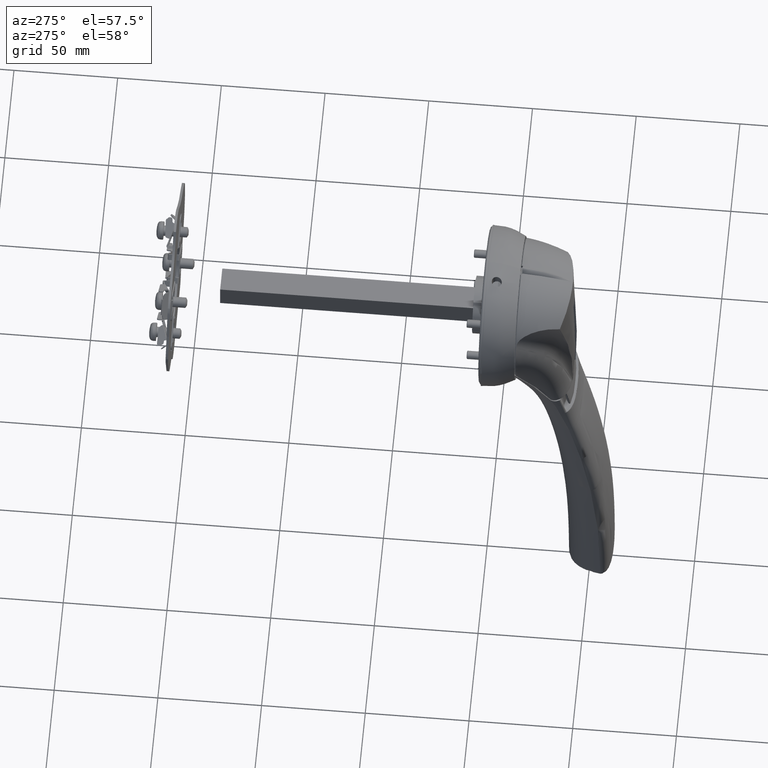
[diagram: clean part render]
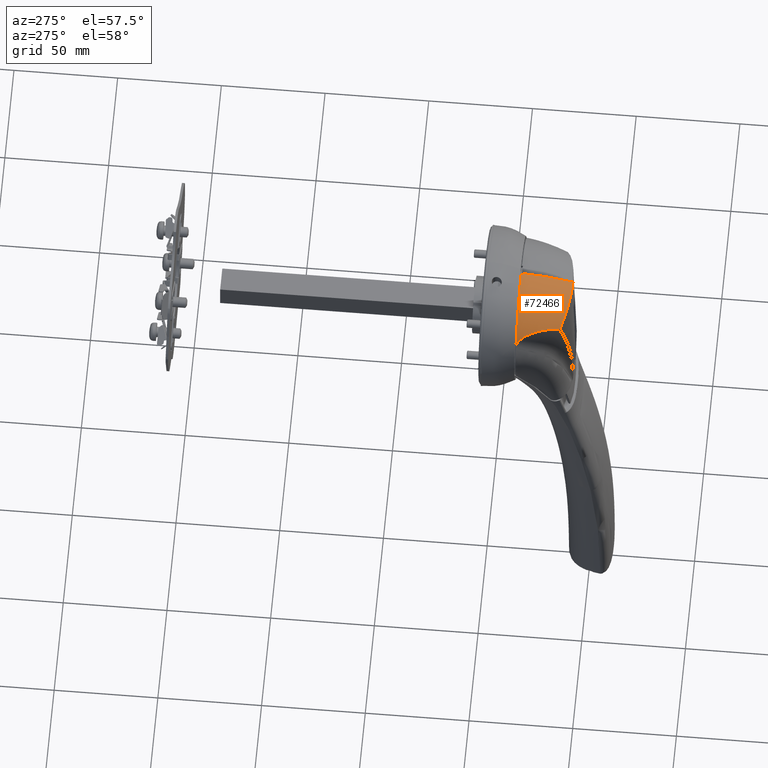
[diagram: same view with one face highlighted and labeled with its STEP entity id]
A machine part, auxiliary view. The second image highlights one B-rep face of the part: STEP entity #72466.
In plain terms, the highlighted face is a freeform B-spline surface patch.
Its self-contained STEP definition (entity closure, byte-faithful):
#64176=CARTESIAN_POINT('',(-2.204747517631E1,-3.696457313312E1,
1.816424930670E1));
#64177=CARTESIAN_POINT('',(-2.231484695051E1,-3.595768819146E1,
1.850492111998E1));
#64178=CARTESIAN_POINT('',(-2.281983744961E1,-3.399953926490E1,
1.909606147936E1));
#64179=CARTESIAN_POINT('',(-2.361086131144E1,-3.127089312547E1,
1.962378905099E1));
#64180=CARTESIAN_POINT('',(-2.441000711580E1,-2.875612849212E1,
1.981005188103E1));
#64181=CARTESIAN_POINT('',(-2.520952481400E1,-2.645448752561E1,
1.973161239998E1));
#64182=CARTESIAN_POINT('',(-2.597510465815E1,-2.443237571592E1,
1.945025134766E1));
#64183=CARTESIAN_POINT('',(-2.671334731381E1,-2.265585213021E1,
1.902676775942E1));
#64184=CARTESIAN_POINT('',(-2.741235129018E1,-2.113210355846E1,
1.848650624893E1));
#64185=CARTESIAN_POINT('',(-2.807235119842E1,-1.984584453122E1,
1.785156398280E1));
#64186=CARTESIAN_POINT('',(-2.870106803516E1,-1.877573166944E1,
1.713893052024E1));
#64187=CARTESIAN_POINT('',(-2.930666968200E1,-1.790779230456E1,
1.635231395327E1));
#64188=CARTESIAN_POINT('',(-2.988936811082E1,-1.725101445490E1,
1.547446101768E1));
#64189=CARTESIAN_POINT('',(-3.043799246019E1,-1.682911617169E1,
1.449939665156E1));
#64190=CARTESIAN_POINT('',(-3.094416485698E1,-1.662805571172E1,
1.345368303337E1));
#64191=CARTESIAN_POINT('',(-3.126899732613E1,-1.660221988197E1,
1.268572670431E1));
#64192=CARTESIAN_POINT('',(-3.142435602910E1,-1.659995744259E1,
1.229443987732E1));
#64224=CARTESIAN_POINT('',(-2.170459178877E1,-3.713039925126E1,
1.846476580945E1));
#64225=CARTESIAN_POINT('',(-2.108727599889E1,-3.742432712661E1,
1.899881161159E1));
#64226=CARTESIAN_POINT('',(-1.968747999896E1,-3.803717438052E1,
2.012469998156E1));
#64227=CARTESIAN_POINT('',(-1.736788963325E1,-3.887883265864E1,
2.170350521777E1));
#64228=CARTESIAN_POINT('',(-1.518784259367E1,-3.951599098557E1,
2.291938044700E1));
#64229=CARTESIAN_POINT('',(-1.336962808800E1,-3.996124103601E1,
2.377742839469E1));
#64230=CARTESIAN_POINT('',(-1.197169129180E1,-4.026218669508E1,
2.436090233913E1));
#64231=CARTESIAN_POINT('',(-1.054264541077E1,-4.052960587051E1,
2.488204156294E1));
#64232=CARTESIAN_POINT('',(-8.600068185443E0,-4.084045572601E1,
2.549057076617E1));
#64233=CARTESIAN_POINT('',(-6.608842129005E0,-4.108171110387E1,
2.596575503660E1));
#64234=CARTESIAN_POINT('',(-4.584108197680E0,-4.125146796886E1,
2.630114006257E1));
#64235=CARTESIAN_POINT('',(-3.053045086271E0,-4.134261530803E1,
2.648162301726E1));
#64236=CARTESIAN_POINT('',(-1.511164663264E0,-4.139753697549E1,
2.659028519606E1));
#64237=CARTESIAN_POINT('',(-4.812270226593E-1,-4.140968176292E1,
2.661479922460E1));
#64238=CARTESIAN_POINT('',(3.518499498542E-2,-4.140963202580E1,
2.661470162415E1));
#64240=CARTESIAN_POINT('',(-2.204747517631E1,-3.696457313312E1,
1.816424930670E1));
#64241=CARTESIAN_POINT('',(-2.193398485416E1,-3.702031340220E1,
1.826509797982E1));
#64242=CARTESIAN_POINT('',(-2.181967296986E1,-3.707560476107E1,
1.836520808036E1));
#64243=CARTESIAN_POINT('',(-2.170459178877E1,-3.713039925126E1,
1.846476580945E1));
#64272=CARTESIAN_POINT('',(3.518499498542E-2,-4.140963202580E1,
2.661470162415E1));
#64761=CARTESIAN_POINT('',(3.517962595722E-2,-4.063912411470E1,
2.697389629480E1));
#64762=CARTESIAN_POINT('',(3.519808477428E-2,-4.089603482010E1,
2.685446086658E1));
#64763=CARTESIAN_POINT('',(3.516649738460E-2,-4.115285990974E1,
2.673443499451E1));
#64764=CARTESIAN_POINT('',(3.518499498542E-2,-4.140963202580E1,
2.661470162415E1));
#64793=CARTESIAN_POINT('',(3.517962595722E-2,-4.063912411470E1,
2.697389629480E1));
#64848=CARTESIAN_POINT('',(-1.801437705354E0,-1.710000313321E1,
3.365211435462E1));
#64849=CARTESIAN_POINT('',(-1.787960942106E0,-1.779150045409E1,
3.355528606998E1));
#64850=CARTESIAN_POINT('',(-1.755127102823E0,-1.911276371501E1,
3.336639220401E1));
#64851=CARTESIAN_POINT('',(-1.696308119173E0,-2.090145849632E1,
3.309264032579E1));
#64852=CARTESIAN_POINT('',(-1.632536236834E0,-2.252181029549E1,
3.282291976142E1));
#64853=CARTESIAN_POINT('',(-1.567090236964E0,-2.399162416666E1,
3.255498742331E1));
#64854=CARTESIAN_POINT('',(-1.502010877819E0,-2.532898815086E1,
3.228798468657E1));
#64855=CARTESIAN_POINT('',(-1.438016874992E0,-2.656001078197E1,
3.201951734274E1));
#64856=CARTESIAN_POINT('',(-1.376509195309E0,-2.768708802715E1,
3.175201984452E1));
#64857=CARTESIAN_POINT('',(-1.318189549550E0,-2.871930802482E1,
3.148688247284E1));
#64858=CARTESIAN_POINT('',(-1.263616739405E0,-2.966442442708E1,
3.122542227830E1));
#64859=CARTESIAN_POINT('',(-1.212648212130E0,-3.053073707106E1,
3.096950485459E1));
#64860=CARTESIAN_POINT('',(-1.164617508212E0,-3.132657826128E1,
3.072118262977E1));
#64861=CARTESIAN_POINT('',(-1.119052267583E0,-3.205993860466E1,
3.048132249525E1));
#64862=CARTESIAN_POINT('',(-1.075463853600E0,-3.273890395556E1,
3.024999958858E1));
#64863=CARTESIAN_POINT('',(-1.033504841954E0,-3.337035566631E1,
3.002690279121E1));
#64864=CARTESIAN_POINT('',(-9.929545448440E-1,-3.395916400583E1,
2.981194772480E1));
#64865=CARTESIAN_POINT('',(-9.537733333431E-1,-3.450755622982E1,
2.960571310027E1));
#64866=CARTESIAN_POINT('',(-9.159587692756E-1,-3.501735742123E1,
2.940874680575E1));
#64867=CARTESIAN_POINT('',(-8.795394208841E-1,-3.549044119209E1,
2.922137695505E1));
#64868=CARTESIAN_POINT('',(-8.443137226713E-1,-3.592860740607E1,
2.904417620296E1));
#64869=CARTESIAN_POINT('',(-8.101163423837E-1,-3.633366199495E1,
2.887748430453E1));
#64870=CARTESIAN_POINT('',(-7.768702172210E-1,-3.670725257320E1,
2.872145640043E1));
#64871=CARTESIAN_POINT('',(-7.445069343114E-1,-3.705157288411E1,
2.857581043007E1));
#64872=CARTESIAN_POINT('',(-7.130965907576E-1,-3.736781410279E1,
2.844052504290E1));
#64873=CARTESIAN_POINT('',(-6.826751951553E-1,-3.765777317786E1,
2.831521915569E1));
#64874=CARTESIAN_POINT('',(-6.533088514030E-1,-3.792304458282E1,
2.819951002317E1));
#64875=CARTESIAN_POINT('',(-6.250737852327E-1,-3.816524325784E1,
2.809293397981E1));
#64876=CARTESIAN_POINT('',(-5.978626498563E-1,-3.838600396823E1,
2.799515892720E1));
#64877=CARTESIAN_POINT('',(-5.716141576770E-1,-3.858692809891E1,
2.790574003831E1));
#64878=CARTESIAN_POINT('',(-5.463064480902E-1,-3.876958277853E1,
2.782414835455E1));
#64879=CARTESIAN_POINT('',(-5.219447456585E-1,-3.893552638520E1,
2.774978166911E1));
#64880=CARTESIAN_POINT('',(-4.985375766443E-1,-3.908629943197E1,
2.768200292038E1));
#64881=CARTESIAN_POINT('',(-4.760790290046E-1,-3.922342349215E1,
2.762016186114E1));
#64882=CARTESIAN_POINT('',(-4.545426926326E-1,-3.934841058136E1,
2.756359595922E1));
#64883=CARTESIAN_POINT('',(-4.338644386305E-1,-3.946275821018E1,
2.751164939726E1));
#64884=CARTESIAN_POINT('',(-4.138103619870E-1,-3.956786373786E1,
2.746382325800E1));
#64885=CARTESIAN_POINT('',(-3.941593846983E-1,-3.966516788863E1,
2.741952861810E1));
#64886=CARTESIAN_POINT('',(-3.746701318806E-1,-3.975610022954E1,
2.737815118969E1));
#64887=CARTESIAN_POINT('',(-3.550847353892E-1,-3.984224859589E1,
2.733894431022E1));
#64888=CARTESIAN_POINT('',(-3.350965028706E-1,-3.992523636423E1,
2.730112157841E1));
#64889=CARTESIAN_POINT('',(-3.143449608506E-1,-4.000653159409E1,
2.726397290708E1));
#64890=CARTESIAN_POINT('',(-2.923779085543E-1,-4.008794637842E1,
2.722655233921E1));
#64891=CARTESIAN_POINT('',(-2.685878958499E-1,-4.016960107128E1,
2.718899750848E1));
#64892=CARTESIAN_POINT('',(-2.406910743623E-1,-4.025336049901E1,
2.715097784806E1));
#64893=CARTESIAN_POINT('',(-2.106857838944E-1,-4.033278528172E1,
2.711505324737E1));
#64894=CARTESIAN_POINT('',(-1.768738443180E-1,-4.042130586255E1,
2.707317421579E1));
#64895=CARTESIAN_POINT('',(-1.387104119373E-1,-4.050798493122E1,
2.703157963831E1));
#64896=CARTESIAN_POINT('',(-9.512781751889E-2,-4.057753889633E1,
2.699942384931E1));
#64897=CARTESIAN_POINT('',(-3.855959526427E-2,-4.062901490482E1,
2.697725779181E1));
#64898=CARTESIAN_POINT('',(9.238280943395E-3,-4.064026407871E1,
2.697337068388E1));
#64899=CARTESIAN_POINT('',(3.517962595722E-2,-4.063912411470E1,
2.697389629480E1));
#64931=CARTESIAN_POINT('',(-1.801437705354E0,-1.710000313321E1,
3.365211435462E1));
#64937=CARTESIAN_POINT('',(-2.468281450673E0,-1.709999998657E1,
3.360917599139E1));
#64938=CARTESIAN_POINT('',(-2.246858380135E0,-1.709999998657E1,
3.362563646692E1));
#64939=CARTESIAN_POINT('',(-2.023142495613E0,-1.710000313321E1,
3.364003668427E1));
#64940=CARTESIAN_POINT('',(-1.801437705354E0,-1.710000313321E1,
3.365211435462E1));
#65738=CARTESIAN_POINT('',(-2.470396414698E0,-1.659999562333E1,
3.367959265492E1));
#65739=CARTESIAN_POINT('',(-2.470396414698E0,-1.676666671448E1,
3.365608285990E1));
#65740=CARTESIAN_POINT('',(-2.468281450673E0,-1.693333515402E1,
3.363273011366E1));
#65741=CARTESIAN_POINT('',(-2.468281450673E0,-1.709999998657E1,
3.360917599139E1));
#65743=CARTESIAN_POINT('',(-3.099096956386E1,-1.659995044892E1,
1.334774699088E1));
#65744=CARTESIAN_POINT('',(-3.080719193130E1,-1.659995044892E1,
1.377547889033E1));
#65745=CARTESIAN_POINT('',(-3.026649986380E1,-1.660004416227E1,
1.496714042633E1));
#65746=CARTESIAN_POINT('',(-2.926180044740E1,-1.659998651444E1,
1.687131760696E1));
#65747=CARTESIAN_POINT('',(-2.791792652244E1,-1.660000467048E1,
1.901535470614E1));
#65748=CARTESIAN_POINT('',(-2.641712190193E1,-1.659999980559E1,
2.105272932426E1));
#65749=CARTESIAN_POINT('',(-2.476820123254E1,-1.660000110911E1,
2.297216301345E1));
#65750=CARTESIAN_POINT('',(-2.298029594569E1,-1.660000075991E1,
2.476286315145E1));
#65751=CARTESIAN_POINT('',(-2.106345349151E1,-1.660000085320E1,
2.641480533994E1));
#65752=CARTESIAN_POINT('',(-1.902840798324E1,-1.660000082924E1,
2.791873016953E1));
#65753=CARTESIAN_POINT('',(-1.688656223099E1,-1.660000083178E1,
2.926621117994E1));
#65754=CARTESIAN_POINT('',(-1.464992782749E1,-1.660000084558E1,
3.044969679423E1));
#65755=CARTESIAN_POINT('',(-1.233100003956E1,-1.660000078786E1,
3.146255811305E1));
#65756=CARTESIAN_POINT('',(-9.942914733710E0,-1.660000100494E1,
3.229910899034E1));
#65757=CARTESIAN_POINT('',(-7.498525039166E0,-1.660000019435E1,
3.295470115516E1));
#65758=CARTESIAN_POINT('',(-5.005897562396E0,-1.660000322887E1,
3.342695437942E1));
#65759=CARTESIAN_POINT('',(-3.318687688405E0,-1.659999562333E1,
3.361654495457E1));
#65760=CARTESIAN_POINT('',(-2.470396414698E0,-1.659999562333E1,
3.367959265492E1));
#65762=CARTESIAN_POINT('',(-3.142660497812E1,-1.659979410003E1,
1.228888543513E1));
#65763=CARTESIAN_POINT('',(-3.142501573044E1,-1.659979410003E1,
1.229289694828E1));
#65764=CARTESIAN_POINT('',(-3.128438927609E1,-1.659979410003E1,
1.264770858774E1));
#65765=CARTESIAN_POINT('',(-3.113904279957E1,-1.659979410003E1,
1.300067421573E1));
#65766=CARTESIAN_POINT('',(-3.099008437968E1,-1.659979410003E1,
1.334736664221E1));
#65994=VERTEX_POINT('',#64793);
#65995=VERTEX_POINT('',#64931);
#66004=CARTESIAN_POINT('',(-2.470396414698E0,-1.659999562333E1,
3.367959265492E1));
#66006=VERTEX_POINT('',#66004);
#66008=VERTEX_POINT('',#65741);
#66019=VERTEX_POINT('',#64272);
#66020=VERTEX_POINT('',#64224);
#66021=VERTEX_POINT('',#64240);
#66022=VERTEX_POINT('',#65743);
#66023=VERTEX_POINT('',#65762);
#72005=CARTESIAN_POINT('',(-3.160665845143E1,-1.634108782509E1,
1.192903671927E1));
#72006=CARTESIAN_POINT('',(-3.159536817396E1,-1.642739188344E1,
1.192473820855E1));
#72007=CARTESIAN_POINT('',(-3.151401643160E1,-1.704925796767E1,
1.189376541892E1));
#72008=CARTESIAN_POINT('',(-3.136258606061E1,-1.820668453924E1,
1.183611194236E1));
#72009=CARTESIAN_POINT('',(-3.114431765861E1,-1.981215166701E1,
1.175307097420E1));
#72010=CARTESIAN_POINT('',(-3.091064243644E1,-2.141516216114E1,
1.166427793210E1));
#72011=CARTESIAN_POINT('',(-3.065498135962E1,-2.301436660946E1,
1.156727656015E1));
#72012=CARTESIAN_POINT('',(-3.037160117250E1,-2.460826772488E1,
1.145992637057E1));
#72013=CARTESIAN_POINT('',(-3.005568535276E1,-2.619521807810E1,
1.134042913425E1));
#72014=CARTESIAN_POINT('',(-2.970341246079E1,-2.777346287609E1,
1.120735813218E1));
#72015=CARTESIAN_POINT('',(-2.931204352403E1,-2.934122178773E1,
1.105969078003E1));
#72016=CARTESIAN_POINT('',(-2.888001713575E1,-3.089681537467E1,
1.089684413293E1));
#72017=CARTESIAN_POINT('',(-2.840704596512E1,-3.243882670929E1,
1.071871091708E1));
#72018=CARTESIAN_POINT('',(-2.789420745771E1,-3.396629488097E1,
1.052569339241E1));
#72019=CARTESIAN_POINT('',(-2.734402534661E1,-3.547892544618E1,
1.031873378446E1));
#72020=CARTESIAN_POINT('',(-2.676054210544E1,-3.697730157540E1,
1.009934133439E1));
#72021=CARTESIAN_POINT('',(-2.614938943439E1,-3.846307819202E1,
9.869618614679E0));
#72022=CARTESIAN_POINT('',(-2.551787885579E1,-3.993913180646E1,
9.632295352586E0));
#72023=CARTESIAN_POINT('',(-2.505509686348E1,-4.099786817915E1,
9.458400632559E0));
#72024=CARTESIAN_POINT('',(-2.480653683149E1,-4.156641619063E1,
9.365001928892E0));
#72025=CARTESIAN_POINT('',(-2.477226412741E1,-4.164481138141E1,
9.352123646306E0));
#72026=CARTESIAN_POINT('',(-3.155663942014E1,-1.634108782509E1,
1.205752953101E1));
#72027=CARTESIAN_POINT('',(-3.154534699692E1,-1.642739188344E1,
1.205319126119E1));
#72028=CARTESIAN_POINT('',(-3.146397979116E1,-1.704925796767E1,
1.202193198927E1));
#72029=CARTESIAN_POINT('',(-3.131252069699E1,-1.820668453924E1,
1.196374522816E1));
#72030=CARTESIAN_POINT('',(-3.109423959242E1,-1.981215166701E1,
1.187992684689E1));
#72031=CARTESIAN_POINT('',(-3.086060360253E1,-2.141516216114E1,
1.179028541144E1));
#72032=CARTESIAN_POINT('',(-3.060505587007E1,-2.301436660946E1,
1.169233435588E1));
#72033=CARTESIAN_POINT('',(-3.032188246566E1,-2.460826772488E1,
1.158390677893E1));
#72034=CARTESIAN_POINT('',(-3.000628310295E1,-2.619521807810E1,
1.146318226145E1));
#72035=CARTESIAN_POINT('',(-2.965444922404E1,-2.777346287609E1,
1.132871647880E1));
#72036=CARTESIAN_POINT('',(-2.926365108917E1,-2.934122178773E1,
1.117947422803E1));
#72037=CARTESIAN_POINT('',(-2.883233255495E1,-3.089681537467E1,
1.101486537077E1));
#72038=CARTESIAN_POINT('',(-2.836020725910E1,-3.243882670929E1,
1.083478130945E1));
#72039=CARTESIAN_POINT('',(-2.784834901525E1,-3.396629488097E1,
1.063962926788E1));
#72040=CARTESIAN_POINT('',(-2.729927304924E1,-3.547892544618E1,
1.043036309861E1));
#72041=CARTESIAN_POINT('',(-2.671700820791E1,-3.697730157540E1,
1.020851066673E1));
#72042=CARTESIAN_POINT('',(-2.610716720755E1,-3.846307819202E1,
9.976200490321E0));
#72043=CARTESIAN_POINT('',(-2.547703692410E1,-3.993913180646E1,
9.736195981321E0));
#72044=CARTESIAN_POINT('',(-2.501527604463E1,-4.099786817915E1,
9.560333467630E0));
#72045=CARTESIAN_POINT('',(-2.476726449262E1,-4.156641619063E1,
9.465877850335E0));
#72046=CARTESIAN_POINT('',(-2.473306741532E1,-4.164481138141E1,
9.452853835315E0));
#72047=CARTESIAN_POINT('',(-3.119958572046E1,-1.634108782509E1,
1.297172180086E1));
#72048=CARTESIAN_POINT('',(-3.118827875238E1,-1.642739188344E1,
1.296710047364E1));
#72049=CARTESIAN_POINT('',(-3.110680672820E1,-1.704925796767E1,
1.293380164530E1));
#72050=CARTESIAN_POINT('',(-3.095515295383E1,-1.820668453924E1,
1.287181826642E1));
#72051=CARTESIAN_POINT('',(-3.073679499257E1,-1.981215166701E1,
1.278246554173E1));
#72052=CARTESIAN_POINT('',(-3.050345181032E1,-2.141516216114E1,
1.268678500826E1));
#72053=CARTESIAN_POINT('',(-3.024872440423E1,-2.301436660946E1,
1.258207455929E1));
#72054=CARTESIAN_POINT('',(-2.996703640608E1,-2.460826772488E1,
1.246597946200E1));
#72055=CARTESIAN_POINT('',(-2.965370309501E1,-2.619521807810E1,
1.233652149946E1));
#72056=CARTESIAN_POINT('',(-2.930500760301E1,-2.777346287609E1,
1.219213114993E1));
#72057=CARTESIAN_POINT('',(-2.891828590801E1,-2.934122178773E1,
1.203168347691E1));
#72058=CARTESIAN_POINT('',(-2.849201933030E1,-3.089681537467E1,
1.185453718757E1));
#72059=CARTESIAN_POINT('',(-2.802592840171E1,-3.243882670929E1,
1.166057427088E1));
#72060=CARTESIAN_POINT('',(-2.752106108411E1,-3.396629488097E1,
1.145023724967E1));
#72061=CARTESIAN_POINT('',(-2.697987205001E1,-3.547892544618E1,
1.122456265843E1));
#72062=CARTESIAN_POINT('',(-2.640629315298E1,-3.697730157540E1,
1.098521080083E1));
#72063=CARTESIAN_POINT('',(-2.580580198480E1,-3.846307819202E1,
1.073449469937E1));
#72064=CARTESIAN_POINT('',(-2.518550999202E1,-3.993913180646E1,
1.047541730436E1));
#72065=CARTESIAN_POINT('',(-2.473102700115E1,-4.099786817915E1,
1.028555709432E1));
#72066=CARTESIAN_POINT('',(-2.448692468908E1,-4.156641619063E1,
1.018358323181E1));
#72067=CARTESIAN_POINT('',(-2.445326663465E1,-4.164481138141E1,
1.016952256426E1));
#72068=CARTESIAN_POINT('',(-3.047757018918E1,-1.634108782509E1,
1.464901613655E1));
#72069=CARTESIAN_POINT('',(-3.046627740425E1,-1.642739188344E1,
1.464386517188E1));
#72070=CARTESIAN_POINT('',(-3.038490754893E1,-1.704925796767E1,
1.460675006513E1));
#72071=CARTESIAN_POINT('',(-3.023344469490E1,-1.820668453924E1,
1.453766275105E1));
#72072=CARTESIAN_POINT('',(-3.001571136848E1,-1.981215166701E1,
1.443797163873E1));
#72073=CARTESIAN_POINT('',(-2.978368021489E1,-2.141516216114E1,
1.433104084055E1));
#72074=CARTESIAN_POINT('',(-2.953124576284E1,-2.301436660946E1,
1.421377885920E1));
#72075=CARTESIAN_POINT('',(-2.925308744018E1,-2.460826772488E1,
1.408349163002E1));
#72076=CARTESIAN_POINT('',(-2.894473542101E1,-2.619521807810E1,
1.393791586259E1));
#72077=CARTESIAN_POINT('',(-2.860264333544E1,-2.777346287609E1,
1.377525585721E1));
#72078=CARTESIAN_POINT('',(-2.822426936396E1,-2.934122178773E1,
1.359422456692E1));
#72079=CARTESIAN_POINT('',(-2.780816449090E1,-3.089681537467E1,
1.339408828458E1));
#72080=CARTESIAN_POINT('',(-2.735406206770E1,-3.243882670929E1,
1.317471199302E1));
#72081=CARTESIAN_POINT('',(-2.686296198469E1,-3.396629488097E1,
1.293660198539E1));
#72082=CARTESIAN_POINT('',(-2.633720631501E1,-3.547892544618E1,
1.268094416734E1));
#72083=CARTESIAN_POINT('',(-2.578054655238E1,-3.697730157540E1,
1.240963810273E1));
#72084=CARTESIAN_POINT('',(-2.519820902352E1,-3.846307819202E1,
1.212533013519E1));
#72085=CARTESIAN_POINT('',(-2.459697896261E1,-3.993913180646E1,
1.183145595905E1));
#72086=CARTESIAN_POINT('',(-2.415658188565E1,-4.099786817915E1,
1.161606293643E1));
#72087=CARTESIAN_POINT('',(-2.392004560778E1,-4.156641619063E1,
1.150037526979E1));
#72088=CARTESIAN_POINT('',(-2.388743079140E1,-4.164481138141E1,
1.148442367547E1));
#72089=CARTESIAN_POINT('',(-2.929497428202E1,-1.634108782509E1,
1.688886657307E1));
#72090=CARTESIAN_POINT('',(-2.928382995369E1,-1.642739188344E1,
1.688297982866E1));
#72091=CARTESIAN_POINT('',(-2.920352976696E1,-1.704925796767E1,
1.684056309110E1));
#72092=CARTESIAN_POINT('',(-2.905405885543E1,-1.820668453924E1,
1.676160698233E1));
#72093=CARTESIAN_POINT('',(-2.883958930605E1,-1.981215166701E1,
1.664760000383E1));
#72094=CARTESIAN_POINT('',(-2.861177511798E1,-2.141516216114E1,
1.652517493428E1));
#72095=CARTESIAN_POINT('',(-2.836491785133E1,-2.301436660946E1,
1.639073707269E1));
#72096=CARTESIAN_POINT('',(-2.809405163880E1,-2.460826772488E1,
1.624115384094E1));
#72097=CARTESIAN_POINT('',(-2.779500464285E1,-2.619521807810E1,
1.607379355233E1));
#72098=CARTESIAN_POINT('',(-2.746446691826E1,-2.777346287609E1,
1.588656822075E1));
#72099=CARTESIAN_POINT('',(-2.710006610015E1,-2.934122178773E1,
1.567798130635E1));
#72100=CARTESIAN_POINT('',(-2.670044977391E1,-3.089681537467E1,
1.544717967630E1));
#72101=CARTESIAN_POINT('',(-2.626536906753E1,-3.243882670929E1,
1.519400633667E1));
#72102=CARTESIAN_POINT('',(-2.579575721200E1,-3.396629488097E1,
1.491904999006E1));
#72103=CARTESIAN_POINT('',(-2.529380014224E1,-3.547892544618E1,
1.462368957221E1));
#72104=CARTESIAN_POINT('',(-2.476299925239E1,-3.697730157540E1,
1.431013383942E1));
#72105=CARTESIAN_POINT('',(-2.420823244740E1,-3.846307819202E1,
1.398145988120E1));
#72106=CARTESIAN_POINT('',(-2.363583261250E1,-3.993913180646E1,
1.364166262060E1));
#72107=CARTESIAN_POINT('',(-2.321669428596E1,-4.099786817915E1,
1.339258582352E1));
#72108=CARTESIAN_POINT('',(-2.299157663127E1,-4.156641619063E1,
1.325880648519E1));
#72109=CARTESIAN_POINT('',(-2.296053626665E1,-4.164481138141E1,
1.324036032165E1));
#72110=CARTESIAN_POINT('',(-2.795063921830E1,-1.634108782509E1,
1.903522722512E1));
#72111=CARTESIAN_POINT('',(-2.793975817805E1,-1.642739188344E1,
1.902861301685E1));
#72112=CARTESIAN_POINT('',(-2.786135508100E1,-1.704925796767E1,
1.898095456543E1));
#72113=CARTESIAN_POINT('',(-2.771541612264E1,-1.820668453924E1,
1.889224126922E1));
#72114=CARTESIAN_POINT('',(-2.750634811908E1,-1.981215166701E1,
1.876411524133E1));
#72115=CARTESIAN_POINT('',(-2.728488866530E1,-2.141516216114E1,
1.862647278824E1));
#72116=CARTESIAN_POINT('',(-2.704574635286E1,-2.301436660946E1,
1.847525019730E1));
#72117=CARTESIAN_POINT('',(-2.678431001922E1,-2.460826772488E1,
1.830690617333E1));
#72118=CARTESIAN_POINT('',(-2.649670581528E1,-2.619521807810E1,
1.811846566538E1));
#72119=CARTESIAN_POINT('',(-2.617986022046E1,-2.777346287609E1,
1.790756826141E1));
#72120=CARTESIAN_POINT('',(-2.583157032451E1,-2.934122178773E1,
1.767252216340E1));
#72121=CARTESIAN_POINT('',(-2.545058031386E1,-3.089681537467E1,
1.741236292769E1));
#72122=CARTESIAN_POINT('',(-2.503665909309E1,-3.243882670929E1,
1.712691307687E1));
#72123=CARTESIAN_POINT('',(-2.459067323382E1,-3.396629488097E1,
1.681683812336E1));
#72124=CARTESIAN_POINT('',(-2.411465253276E1,-3.547892544618E1,
1.648369691688E1));
#72125=CARTESIAN_POINT('',(-2.361184828449E1,-3.697730157540E1,
1.612998639693E1));
#72126=CARTESIAN_POINT('',(-2.308678997215E1,-3.846307819202E1,
1.575918513033E1));
#72127=CARTESIAN_POINT('',(-2.254535813203E1,-3.993913180646E1,
1.537580926999E1));
#72128=CARTESIAN_POINT('',(-2.214901770660E1,-4.099786817915E1,
1.509477881365E1));
#72129=CARTESIAN_POINT('',(-2.193614523617E1,-4.156641619063E1,
1.494383709880E1));
#72130=CARTESIAN_POINT('',(-2.190679329481E1,-4.164481138141E1,
1.492302450143E1));
#72131=CARTESIAN_POINT('',(-2.644862078937E1,-1.634108782509E1,
2.107469642266E1));
#72132=CARTESIAN_POINT('',(-2.643811498915E1,-1.642739188344E1,
2.106737141625E1));
#72133=CARTESIAN_POINT('',(-2.636241565437E1,-1.704925796767E1,
2.101459133287E1));
#72134=CARTESIAN_POINT('',(-2.622151004241E1,-1.820668453924E1,
2.091634443830E1));
#72135=CARTESIAN_POINT('',(-2.601992774659E1,-1.981215166701E1,
2.077445246615E1));
#72136=CARTESIAN_POINT('',(-2.580690718903E1,-2.141516216114E1,
2.062202741244E1));
#72137=CARTESIAN_POINT('',(-2.557756399270E1,-2.301436660946E1,
2.045457143101E1));
#72138=CARTESIAN_POINT('',(-2.532764169989E1,-2.460826772488E1,
2.026816490390E1));
#72139=CARTESIAN_POINT('',(-2.505356444987E1,-2.619521807810E1,
2.005951495027E1));
#72140=CARTESIAN_POINT('',(-2.475249514673E1,-2.777346287609E1,
1.982600899112E1));
#72141=CARTESIAN_POINT('',(-2.442240033485E1,-2.934122178773E1,
1.956577449070E1));
#72142=CARTESIAN_POINT('',(-2.406212080172E1,-3.089681537467E1,
1.927774397214E1));
#72143=CARTESIAN_POINT('',(-2.367144322847E1,-3.243882670929E1,
1.896172099780E1));
#72144=CARTESIAN_POINT('',(-2.325116752738E1,-3.396629488097E1,
1.861844217798E1));
#72145=CARTESIAN_POINT('',(-2.280316735695E1,-3.547892544618E1,
1.824963289702E1));
#72146=CARTESIAN_POINT('',(-2.233044391216E1,-3.697730157540E1,
1.785805684685E1));
#72147=CARTESIAN_POINT('',(-2.183717825439E1,-3.846307819202E1,
1.744756421566E1));
#72148=CARTESIAN_POINT('',(-2.132879857098E1,-3.993913180646E1,
1.702315362488E1));
#72149=CARTESIAN_POINT('',(-2.095675660147E1,-4.099786817915E1,
1.671204402287E1));
#72150=CARTESIAN_POINT('',(-2.075693514947E1,-4.156641619063E1,
1.654494677571E1));
#72151=CARTESIAN_POINT('',(-2.072938274489E1,-4.164481138141E1,
1.652190657283E1));
#72152=CARTESIAN_POINT('',(-2.479828209243E1,-1.634108782509E1,
2.299619812178E1));
#72153=CARTESIAN_POINT('',(-2.478825683659E1,-1.642739188344E1,
2.298818715888E1));
#72154=CARTESIAN_POINT('',(-2.471602003716E1,-1.704925796767E1,
2.293046443741E1));
#72155=CARTESIAN_POINT('',(-2.458156001341E1,-1.820668453924E1,
2.282301718106E1));
#72156=CARTESIAN_POINT('',(-2.438942383153E1,-1.981215166701E1,
2.266786435198E1));
#72157=CARTESIAN_POINT('',(-2.418680257639E1,-2.141516216114E1,
2.250124303225E1));
#72158=CARTESIAN_POINT('',(-2.396921890237E1,-2.301436660946E1,
2.231825593646E1));
#72159=CARTESIAN_POINT('',(-2.373277105658E1,-2.460826772488E1,
2.211463535799E1));
#72160=CARTESIAN_POINT('',(-2.347418116667E1,-2.619521807810E1,
2.188679598586E1));
#72161=CARTESIAN_POINT('',(-2.319084856141E1,-2.777346287609E1,
2.163189322632E1));
#72162=CARTESIAN_POINT('',(-2.288090923981E1,-2.934122178773E1,
2.134788824976E1));
#72163=CARTESIAN_POINT('',(-2.254330059039E1,-3.089681537467E1,
2.103361878010E1));
#72164=CARTESIAN_POINT('',(-2.217782707087E1,-3.243882670929E1,
2.068887093473E1));
#72165=CARTESIAN_POINT('',(-2.178522193415E1,-3.396629488097E1,
2.031444673992E1));
#72166=CARTESIAN_POINT('',(-2.136720270054E1,-3.547892544618E1,
1.991222480586E1));
#72167=CARTESIAN_POINT('',(-2.092652046543E1,-3.697730157540E1,
1.948521425905E1));
#72168=CARTESIAN_POINT('',(-2.046700786843E1,-3.846307819202E1,
1.903760721053E1));
#72169=CARTESIAN_POINT('',(-1.999364074792E1,-3.993913180646E1,
1.857484619319E1));
#72170=CARTESIAN_POINT('',(-1.964730868750E1,-4.099786817915E1,
1.823563284263E1));
#72171=CARTESIAN_POINT('',(-1.946129623838E1,-4.156641619063E1,
1.805344108329E1));
#72172=CARTESIAN_POINT('',(-1.943564788630E1,-4.164481138141E1,
1.802831957335E1));
#72173=CARTESIAN_POINT('',(-2.300863208558E1,-1.634108782509E1,
2.478885598259E1));
#72174=CARTESIAN_POINT('',(-2.299918628229E1,-1.642739188344E1,
2.478019154320E1));
#72175=CARTESIAN_POINT('',(-2.293112470351E1,-1.704925796767E1,
2.471776021568E1));
#72176=CARTESIAN_POINT('',(-2.280443673039E1,-1.820668453924E1,
2.460154827230E1));
#72177=CARTESIAN_POINT('',(-2.262358799380E1,-1.981215166701E1,
2.443378193368E1));
#72178=CARTESIAN_POINT('',(-2.243320737243E1,-2.141516216114E1,
2.425369305795E1));
#72179=CARTESIAN_POINT('',(-2.222922455208E1,-2.301436660946E1,
2.405601966401E1));
#72180=CARTESIAN_POINT('',(-2.200809248467E1,-2.460826772488E1,
2.383617623358E1));
#72181=CARTESIAN_POINT('',(-2.176683128624E1,-2.619521807810E1,
2.359031046136E1));
#72182=CARTESIAN_POINT('',(-2.150307671022E1,-2.777346287609E1,
2.331536591967E1));
#72183=CARTESIAN_POINT('',(-2.121513421025E1,-2.934122178773E1,
2.300915194941E1));
#72184=CARTESIAN_POINT('',(-2.090203777590E1,-3.089681537467E1,
2.267041972102E1));
#72185=CARTESIAN_POINT('',(-2.056360964146E1,-3.243882670929E1,
2.229893942428E1));
#72186=CARTESIAN_POINT('',(-2.020051640048E1,-3.396629488097E1,
2.189557281150E1));
#72187=CARTESIAN_POINT('',(-1.981431943504E1,-3.547892544618E1,
2.146233839101E1));
#72188=CARTESIAN_POINT('',(-1.940751974098E1,-3.697730157540E1,
2.100246937580E1));
#72189=CARTESIAN_POINT('',(-1.898360153610E1,-3.846307819202E1,
2.052047005901E1));
#72190=CARTESIAN_POINT('',(-1.854708830985E1,-3.993913180646E1,
2.002218827326E1));
#72191=CARTESIAN_POINT('',(-1.822779188021E1,-4.099786817915E1,
1.965695128411E1));
#72192=CARTESIAN_POINT('',(-1.805630037852E1,-4.156641619063E1,
1.946078226634E1));
#72193=CARTESIAN_POINT('',(-1.803265424636E1,-4.164481138141E1,
1.943373350162E1));
#72194=CARTESIAN_POINT('',(-2.108977788651E1,-1.634108782509E1,
2.644264045556E1));
#72195=CARTESIAN_POINT('',(-2.108100326809E1,-1.642739188344E1,
2.643336216285E1));
#72196=CARTESIAN_POINT('',(-2.101777788951E1,-1.704925796767E1,
2.636650773174E1));
#72197=CARTESIAN_POINT('',(-2.090009219377E1,-1.820668453924E1,
2.624206257367E1));
#72198=CARTESIAN_POINT('',(-2.073223864413E1,-1.981215166701E1,
2.606246303835E1));
#72199=CARTESIAN_POINT('',(-2.055580639819E1,-2.141516216114E1,
2.586976825120E1));
#72200=CARTESIAN_POINT('',(-2.036713217317E1,-2.301436660946E1,
2.565838626571E1));
#72201=CARTESIAN_POINT('',(-2.016302362579E1,-2.460826772488E1,
2.542344401754E1));
#72202=CARTESIAN_POINT('',(-1.994079886049E1,-2.619521807810E1,
2.516084763316E1));
#72203=CARTESIAN_POINT('',(-1.969833005537E1,-2.777346287609E1,
2.486734902415E1));
#72204=CARTESIAN_POINT('',(-1.943409211868E1,-2.934122178773E1,
2.454062016079E1));
#72205=CARTESIAN_POINT('',(-1.914721564106E1,-3.089681537467E1,
2.417933390262E1));
#72206=CARTESIAN_POINT('',(-1.883754063335E1,-3.243882670929E1,
2.378324602859E1));
#72207=CARTESIAN_POINT('',(-1.850566702976E1,-3.396629488097E1,
2.335327232931E1));
#72208=CARTESIAN_POINT('',(-1.815300007416E1,-3.547892544618E1,
2.289155788859E1));
#72209=CARTESIAN_POINT('',(-1.778179066279E1,-3.697730157540E1,
2.240153866592E1));
#72210=CARTESIAN_POINT('',(-1.739517459169E1,-3.846307819202E1,
2.188800140716E1));
#72211=CARTESIAN_POINT('',(-1.699722300136E1,-3.993913180646E1,
2.135716064749E1));
#72212=CARTESIAN_POINT('',(-1.670619174225E1,-4.099786817915E1,
2.096807524900E1));
#72213=CARTESIAN_POINT('',(-1.654988148054E1,-4.156641619063E1,
2.075909730778E1));
#72214=CARTESIAN_POINT('',(-1.652832861365E1,-4.164481138141E1,
2.073028238399E1));
#72215=CARTESIAN_POINT('',(-1.905246559914E1,-1.634108782509E1,
2.794826806484E1));
#72216=CARTESIAN_POINT('',(-1.904444626842E1,-1.642739188344E1,
2.793842212707E1));
#72217=CARTESIAN_POINT('',(-1.898666309493E1,-1.704925796767E1,
2.786747754374E1));
#72218=CARTESIAN_POINT('',(-1.887910758357E1,-1.820668453924E1,
2.773541895607E1));
#72219=CARTESIAN_POINT('',(-1.872581492716E1,-1.981215166701E1,
2.754488913277E1));
#72220=CARTESIAN_POINT('',(-1.856489676291E1,-2.141516216114E1,
2.734057268288E1));
#72221=CARTESIAN_POINT('',(-1.839309683949E1,-2.301436660946E1,
2.711658242844E1));
#72222=CARTESIAN_POINT('',(-1.820757751841E1,-2.460826772488E1,
2.686778802759E1));
#72223=CARTESIAN_POINT('',(-1.800595489252E1,-2.619521807810E1,
2.658987946735E1));
#72224=CARTESIAN_POINT('',(-1.778633756456E1,-2.777346287609E1,
2.627943717375E1));
#72225=CARTESIAN_POINT('',(-1.754736989744E1,-2.934122178773E1,
2.593401020681E1));
#72226=CARTESIAN_POINT('',(-1.728827908281E1,-3.089681537467E1,
2.555220135857E1));
#72227=CARTESIAN_POINT('',(-1.700892290811E1,-3.243882670929E1,
2.513375351413E1));
#72228=CARTESIAN_POINT('',(-1.670983464818E1,-3.396629488097E1,
2.467963081404E1));
#72229=CARTESIAN_POINT('',(-1.639226340869E1,-3.547892544618E1,
2.419209159358E1));
#72230=CARTESIAN_POINT('',(-1.605820998629E1,-3.697730157540E1,
2.367475321662E1));
#72231=CARTESIAN_POINT('',(-1.571046175524E1,-3.846307819202E1,
2.313265514921E1));
#72232=CARTESIAN_POINT('',(-1.535263750709E1,-3.993913180646E1,
2.257234002814E1));
#72233=CARTESIAN_POINT('',(-1.509099869566E1,-4.099786817915E1,
2.216166988040E1));
#72234=CARTESIAN_POINT('',(-1.495047504897E1,-4.156641619063E1,
2.194109884029E1));
#72235=CARTESIAN_POINT('',(-1.493109892029E1,-4.164481138141E1,
2.191068540128E1));
#72236=CARTESIAN_POINT('',(-1.690812783620E1,-1.634108782509E1,
2.929729532745E1));
#72237=CARTESIAN_POINT('',(-1.690093977906E1,-1.642739188344E1,
2.928693394917E1));
#72238=CARTESIAN_POINT('',(-1.684914632889E1,-1.704925796767E1,
2.921227537153E1));
#72239=CARTESIAN_POINT('',(-1.675274005249E1,-1.820668453924E1,
2.907330355613E1));
#72240=CARTESIAN_POINT('',(-1.661542288630E1,-1.981215166701E1,
2.887285798306E1));
#72241=CARTESIAN_POINT('',(-1.647143340077E1,-2.141516216114E1,
2.865801574644E1));
#72242=CARTESIAN_POINT('',(-1.631792237595E1,-2.301436660946E1,
2.842262916976E1));
#72243=CARTESIAN_POINT('',(-1.615240687818E1,-2.460826772488E1,
2.816134090145E1));
#72244=CARTESIAN_POINT('',(-1.597280098871E1,-2.619521807810E1,
2.786965021709E1));
#72245=CARTESIAN_POINT('',(-1.577744973492E1,-2.777346287609E1,
2.754398623185E1));
#72246=CARTESIAN_POINT('',(-1.556516693437E1,-2.934122178773E1,
2.718178955542E1));
#72247=CARTESIAN_POINT('',(-1.533527637975E1,-3.089681537467E1,
2.678160115556E1));
#72248=CARTESIAN_POINT('',(-1.508765363506E1,-3.243882670929E1,
2.634315254043E1));
#72249=CARTESIAN_POINT('',(-1.482276531580E1,-3.396629488097E1,
2.586745051230E1));
#72250=CARTESIAN_POINT('',(-1.454170438943E1,-3.547892544618E1,
2.535685333431E1));
#72251=CARTESIAN_POINT('',(-1.424622155301E1,-3.697730157540E1,
2.481513843310E1));
#72252=CARTESIAN_POINT('',(-1.393875575901E1,-3.846307819202E1,
2.424756826332E1));
#72253=CARTESIAN_POINT('',(-1.362247345007E1,-3.993913180646E1,
2.366097496337E1));
#72254=CARTESIAN_POINT('',(-1.339124556780E1,-4.099786817915E1,
2.323106405347E1));
#72255=CARTESIAN_POINT('',(-1.326705548530E1,-4.156641619063E1,
2.300015887652E1));
#72256=CARTESIAN_POINT('',(-1.324993151167E1,-4.164481138141E1,
2.296832051422E1));
#72257=CARTESIAN_POINT('',(-1.466879089667E1,-1.634108782509E1,
3.048215499602E1));
#72258=CARTESIAN_POINT('',(-1.466250156058E1,-1.642739188344E1,
3.047133575396E1));
#72259=CARTESIAN_POINT('',(-1.461718382813E1,-1.704925796767E1,
3.039337804915E1));
#72260=CARTESIAN_POINT('',(-1.453283132800E1,-1.820668453924E1,
3.024826525420E1));
#72261=CARTESIAN_POINT('',(-1.441274529282E1,-1.981215166701E1,
3.003901848115E1));
#72262=CARTESIAN_POINT('',(-1.428694012678E1,-2.141516216114E1,
2.981484634596E1));
#72263=CARTESIAN_POINT('',(-1.415297364135E1,-2.301436660946E1,
2.956937540676E1));
#72264=CARTESIAN_POINT('',(-1.400871760768E1,-2.460826772488E1,
2.929705157028E1));
#72265=CARTESIAN_POINT('',(-1.385238409540E1,-2.619521807810E1,
2.899320882888E1));
#72266=CARTESIAN_POINT('',(-1.368255455656E1,-2.777346287609E1,
2.865414516168E1));
#72267=CARTESIAN_POINT('',(-1.349821226336E1,-2.934122178773E1,
2.827720718811E1));
#72268=CARTESIAN_POINT('',(-1.329877760953E1,-3.089681537467E1,
2.786088229489E1));
#72269=CARTESIAN_POINT('',(-1.308414393564E1,-3.243882670929E1,
2.740489213016E1));
#72270=CARTESIAN_POINT('',(-1.285471119783E1,-3.396629488097E1,
2.691028046970E1));
#72271=CARTESIAN_POINT('',(-1.261141622535E1,-3.547892544618E1,
2.637949218076E1));
#72272=CARTESIAN_POINT('',(-1.235575961569E1,-3.697730157540E1,
2.581644341101E1));
#72273=CARTESIAN_POINT('',(-1.208983189954E1,-3.846307819202E1,
2.522658987188E1));
#72274=CARTESIAN_POINT('',(-1.181634717056E1,-3.993913180646E1,
2.461701460304E1));
#72275=CARTESIAN_POINT('',(-1.161643425367E1,-4.099786817915E1,
2.417027893622E1));
#72276=CARTESIAN_POINT('',(-1.150906322462E1,-4.156641619063E1,
2.393033725995E1));
#72277=CARTESIAN_POINT('',(-1.149425834837E1,-4.164481138141E1,
2.389725289913E1));
#72278=CARTESIAN_POINT('',(-1.234701498455E1,-1.634108782509E1,
3.149620126498E1));
#72279=CARTESIAN_POINT('',(-1.234168289950E1,-1.642739188344E1,
3.148498645435E1));
#72280=CARTESIAN_POINT('',(-1.230326262398E1,-1.704925796767E1,
3.140417848878E1));
#72281=CARTESIAN_POINT('',(-1.223174884856E1,-1.820668453924E1,
3.125376024249E1));
#72282=CARTESIAN_POINT('',(-1.212998357210E1,-1.981215166701E1,
3.103691466145E1));
#72283=CARTESIAN_POINT('',(-1.202345235325E1,-2.141516216114E1,
3.080469635789E1));
#72284=CARTESIAN_POINT('',(-1.191012003491E1,-2.301436660946E1,
3.055054085771E1));
#72285=CARTESIAN_POINT('',(-1.178821309304E1,-2.460826772488E1,
3.026872759386E1));
#72286=CARTESIAN_POINT('',(-1.165624158567E1,-2.619521807810E1,
2.995445070369E1));
#72287=CARTESIAN_POINT('',(-1.151302338949E1,-2.777346287609E1,
2.960389720503E1));
#72288=CARTESIAN_POINT('',(-1.135771123134E1,-2.934122178773E1,
2.921433418708E1));
#72289=CARTESIAN_POINT('',(-1.118982210600E1,-3.089681537467E1,
2.878420369875E1));
#72290=CARTESIAN_POINT('',(-1.100926713062E1,-3.243882670929E1,
2.831321904509E1));
#72291=CARTESIAN_POINT('',(-1.081637960196E1,-3.396629488097E1,
2.780245528715E1));
#72292=CARTESIAN_POINT('',(-1.061194021108E1,-3.547892544618E1,
2.725443057261E1));
#72293=CARTESIAN_POINT('',(-1.039719945589E1,-3.697730157540E1,
2.667317842847E1));
#72294=CARTESIAN_POINT('',(-1.017389944528E1,-3.846307819202E1,
2.606431809110E1));
#72295=CARTESIAN_POINT('',(-9.944301923992E0,-3.993913180646E1,
2.543514490134E1));
#72296=CARTESIAN_POINT('',(-9.776488482578E0,-4.099786817915E1,
2.497406372425E1));
#72297=CARTESIAN_POINT('',(-9.686357807859E0,-4.156641619063E1,
2.472641714840E1));
#72298=CARTESIAN_POINT('',(-9.673930120633E0,-4.164481138141E1,
2.469227039672E1));
#72299=CARTESIAN_POINT('',(-9.955821872541E0,-1.634108782509E1,
3.233374643040E1));
#72300=CARTESIAN_POINT('',(-9.951496323304E0,-1.642739188344E1,
3.232220238455E1));
#72301=CARTESIAN_POINT('',(-9.920328627481E0,-1.704925796767E1,
3.223902212142E1));
#72302=CARTESIAN_POINT('',(-9.862314537525E0,-1.820668453924E1,
3.208418810750E1));
#72303=CARTESIAN_POINT('',(-9.779787533708E0,-1.981215166701E1,
3.186102128652E1));
#72304=CARTESIAN_POINT('',(-9.693447775981E0,-2.141516216114E1,
3.162211572090E1));
#72305=CARTESIAN_POINT('',(-9.601667138661E0,-2.301436660946E1,
3.136075063744E1));
#72306=CARTESIAN_POINT('',(-9.503026802516E0,-2.460826772488E1,
3.107106926329E1));
#72307=CARTESIAN_POINT('',(-9.396334813966E0,-2.619521807810E1,
3.074815130895E1));
#72308=CARTESIAN_POINT('',(-9.280645474377E0,-2.777346287609E1,
3.038809300576E1));
#72309=CARTESIAN_POINT('',(-9.155280965209E0,-2.934122178773E1,
2.998809637272E1));
#72310=CARTESIAN_POINT('',(-9.019854882290E0,-3.089681537467E1,
2.954656636418E1));
#72311=CARTESIAN_POINT('',(-8.874296119331E0,-3.243882670929E1,
2.906320945904E1));
#72312=CARTESIAN_POINT('',(-8.718871313758E0,-3.396629488097E1,
2.853912631537E1));
#72313=CARTESIAN_POINT('',(-8.554205018406E0,-3.547892544618E1,
2.797689503754E1));
#72314=CARTESIAN_POINT('',(-8.381297631600E0,-3.697730157540E1,
2.738064519022E1));
#72315=CARTESIAN_POINT('',(-8.201542840467E0,-3.846307819202E1,
2.675612980292E1));
#72316=CARTESIAN_POINT('',(-8.016750040788E0,-3.993913180646E1,
2.611081791738E1));
#72317=CARTESIAN_POINT('',(-7.881696666490E0,-4.099786817915E1,
2.563792460281E1));
#72318=CARTESIAN_POINT('',(-7.809161099767E0,-4.156641619063E1,
2.538393379413E1));
#72319=CARTESIAN_POINT('',(-7.799159517253E0,-4.164481138141E1,
2.534891226721E1));
#72320=CARTESIAN_POINT('',(-7.508622387518E0,-1.634108782509E1,
3.299009273991E1));
#72321=CARTESIAN_POINT('',(-7.505343137476E0,-1.642739188344E1,
3.297828912748E1));
#72322=CARTESIAN_POINT('',(-7.481714537338E0,-1.704925796767E1,
3.289323856271E1));
#72323=CARTESIAN_POINT('',(-7.437733401441E0,-1.820668453924E1,
3.273492319491E1));
#72324=CARTESIAN_POINT('',(-7.375184928106E0,-1.981215166701E1,
3.250677479415E1));
#72325=CARTESIAN_POINT('',(-7.309776889337E0,-2.141516216114E1,
3.226260296488E1));
#72326=CARTESIAN_POINT('',(-7.240288190875E0,-2.301436660946E1,
3.199556536793E1));
#72327=CARTESIAN_POINT('',(-7.165654718292E0,-2.460826772488E1,
3.169969929260E1));
#72328=CARTESIAN_POINT('',(-7.084982506406E0,-2.619521807810E1,
3.136999545074E1));
#72329=CARTESIAN_POINT('',(-6.997562281242E0,-2.777346287609E1,
3.100247946195E1));
#72330=CARTESIAN_POINT('',(-6.902885678893E0,-2.934122178773E1,
3.059430273512E1));
#72331=CARTESIAN_POINT('',(-6.800662896230E0,-3.089681537467E1,
3.014384137323E1));
#72332=CARTESIAN_POINT('',(-6.690840603538E0,-3.243882670929E1,
2.965079654597E1));
#72333=CARTESIAN_POINT('',(-6.573618778885E0,-3.396629488097E1,
2.911628882019E1));
#72334=CARTESIAN_POINT('',(-6.449465836897E0,-3.547892544618E1,
2.854294293328E1));
#72335=CARTESIAN_POINT('',(-6.319132076320E0,-3.697730157540E1,
2.793496314584E1));
#72336=CARTESIAN_POINT('',(-6.183662762498E0,-3.846307819202E1,
2.729820654871E1));
#72337=CARTESIAN_POINT('',(-6.044414942265E0,-3.993913180646E1,
2.664027728436E1));
#72338=CARTESIAN_POINT('',(-5.942654605892E0,-4.099786817915E1,
2.615814990993E1));
#72339=CARTESIAN_POINT('',(-5.888000365357E0,-4.156641619063E1,
2.589919954276E1));
#72340=CARTESIAN_POINT('',(-5.880464353137E0,-4.164481138141E1,
2.586349416655E1));
#72341=CARTESIAN_POINT('',(-5.019141195812E0,-1.634108782509E1,
3.346155890471E1));
#72342=CARTESIAN_POINT('',(-5.016938264111E0,-1.642739188344E1,
3.344956800802E1));
#72343=CARTESIAN_POINT('',(-5.001065063348E0,-1.704925796767E1,
3.336316797014E1));
#72344=CARTESIAN_POINT('',(-4.971519469750E0,-1.820668453924E1,
3.320234071387E1));
#72345=CARTESIAN_POINT('',(-4.929508380536E0,-1.981215166701E1,
3.297059905050E1));
#72346=CARTESIAN_POINT('',(-4.885590914365E0,-2.141516216114E1,
3.272263061301E1));
#72347=CARTESIAN_POINT('',(-4.838953008398E0,-2.301436660946E1,
3.245150622939E1));
#72348=CARTESIAN_POINT('',(-4.788885253018E0,-2.460826772488E1,
3.215118751903E1));
#72349=CARTESIAN_POINT('',(-4.734791671437E0,-2.619521807810E1,
3.181660162333E1));
#72350=CARTESIAN_POINT('',(-4.676199414336E0,-2.777346287609E1,
3.144372372494E1));
#72351=CARTESIAN_POINT('',(-4.612769572445E0,-2.934122178773E1,
3.102966908264E1));
#72352=CARTESIAN_POINT('',(-4.544308943679E0,-3.089681537467E1,
3.057279319133E1));
#72353=CARTESIAN_POINT('',(-4.470781974893E0,-3.243882670929E1,
3.007279342837E1));
#72354=CARTESIAN_POINT('',(-4.392321984799E0,-3.396629488097E1,
2.953080458121E1));
#72355=CARTESIAN_POINT('',(-4.309241249816E0,-3.547892544618E1,
2.894948469649E1));
#72356=CARTESIAN_POINT('',(-4.222039969107E0,-3.697730157540E1,
2.833309138907E1));
#72357=CARTESIAN_POINT('',(-4.131414986234E0,-3.846307819202E1,
2.768755607933E1));
#72358=CARTESIAN_POINT('',(-4.038270999087E0,-3.993913180646E1,
2.702057941022E1));
#72359=CARTESIAN_POINT('',(-3.970206064060E0,-4.099786817915E1,
2.653183108572E1));
#72360=CARTESIAN_POINT('',(-3.933649228589E0,-4.156641619063E1,
2.626932464748E1));
#72361=CARTESIAN_POINT('',(-3.928608580991E0,-4.164481138141E1,
2.623312894199E1));
#72362=CARTESIAN_POINT('',(-2.501339872536E0,-1.634108782509E1,
3.374550049151E1));
#72363=CARTESIAN_POINT('',(-2.500233365888E0,-1.642739188344E1,
3.373339647034E1));
#72364=CARTESIAN_POINT('',(-2.492260443910E0,-1.704925796767E1,
3.364618131622E1));
#72365=CARTESIAN_POINT('',(-2.477420044716E0,-1.820668453924E1,
3.348383681600E1));
#72366=CARTESIAN_POINT('',(-2.456320657714E0,-1.981215166701E1,
3.324992515968E1));
#72367=CARTESIAN_POINT('',(-2.434268082234E0,-2.141516216114E1,
3.299966472186E1));
#72368=CARTESIAN_POINT('',(-2.410855286856E0,-2.301436660946E1,
3.272607423084E1));
#72369=CARTESIAN_POINT('',(-2.385727566771E0,-2.460826772488E1,
3.242306990407E1));
#72370=CARTESIAN_POINT('',(-2.358586933586E0,-2.619521807810E1,
3.208554074067E1));
#72371=CARTESIAN_POINT('',(-2.329196962641E0,-2.777346287609E1,
3.170943166112E1));
#72372=CARTESIAN_POINT('',(-2.297388199301E0,-2.934122178773E1,
3.129183623414E1));
#72373=CARTESIAN_POINT('',(-2.263064042523E0,-3.089681537467E1,
3.083109758978E1));
#72374=CARTESIAN_POINT('',(-2.226206715735E0,-3.243882670929E1,
3.032691083001E1));
#72375=CARTESIAN_POINT('',(-2.186882878294E0,-3.396629488097E1,
2.978041927461E1));
#72376=CARTESIAN_POINT('',(-2.145248668407E0,-3.547892544618E1,
2.919430095581E1));
#72377=CARTESIAN_POINT('',(-2.101554185658E0,-3.697730157540E1,
2.857284550101E1));
#72378=CARTESIAN_POINT('',(-2.056147851827E0,-3.846307819202E1,
2.792202892829E1));
#72379=CARTESIAN_POINT('',(-2.009482015859E0,-3.993913180646E1,
2.724960978094E1));
#72380=CARTESIAN_POINT('',(-1.975381983702E0,-4.099786817915E1,
2.675687878118E1));
#72381=CARTESIAN_POINT('',(-1.957067282121E0,-4.156641619063E1,
2.649223327357E1));
#72382=CARTESIAN_POINT('',(-1.954541955275E0,-4.164481138141E1,
2.645574262223E1));
#72383=CARTESIAN_POINT('',(-6.777972947607E-1,-1.634108782509E1,
3.381379291817E1));
#72384=CARTESIAN_POINT('',(-6.774876921751E-1,-1.642739188344E1,
3.380166164899E1));
#72385=CARTESIAN_POINT('',(-6.752568540128E-1,-1.704925796767E1,
3.371425015989E1));
#72386=CARTESIAN_POINT('',(-6.711044831566E-1,-1.820668453924E1,
3.355154020511E1));
#72387=CARTESIAN_POINT('',(-6.652008360431E-1,-1.981215166701E1,
3.331710591942E1));
#72388=CARTESIAN_POINT('',(-6.590304850262E-1,-2.141516216114E1,
3.306629356240E1));
#72389=CARTESIAN_POINT('',(-6.524795419598E-1,-2.301436660946E1,
3.279210935497E1));
#72390=CARTESIAN_POINT('',(-6.454487597800E-1,-2.460826772488E1,
3.248845861514E1));
#72391=CARTESIAN_POINT('',(-6.378547607811E-1,-2.619521807810E1,
3.215022118536E1));
#72392=CARTESIAN_POINT('',(-6.296313929061E-1,-2.777346287609E1,
3.177333472118E1));
#72393=CARTESIAN_POINT('',(-6.207312424336E-1,-2.934122178773E1,
3.135488758427E1));
#72394=CARTESIAN_POINT('',(-6.111272802127E-1,-3.089681537467E1,
3.089321993631E1));
#72395=CARTESIAN_POINT('',(-6.008145323244E-1,-3.243882670929E1,
3.038802633302E1));
#72396=CARTESIAN_POINT('',(-5.898116501819E-1,-3.396629488097E1,
2.984045214251E1));
#72397=CARTESIAN_POINT('',(-5.781623215447E-1,-3.547892544618E1,
2.925318019486E1));
#72398=CARTESIAN_POINT('',(-5.659365247399E-1,-3.697730157540E1,
2.863050780261E1));
#72399=CARTESIAN_POINT('',(-5.532317488271E-1,-3.846307819202E1,
2.797842169021E1));
#72400=CARTESIAN_POINT('',(-5.401745618814E-1,-3.993913180646E1,
2.730469430088E1));
#72401=CARTESIAN_POINT('',(-5.306333100052E-1,-4.099786817915E1,
2.681100598086E1));
#72402=CARTESIAN_POINT('',(-5.255088227317E-1,-4.156641619063E1,
2.654584630277E1));
#72403=CARTESIAN_POINT('',(-5.248022316237E-1,-4.164481138141E1,
2.650928475497E1));
#72404=CARTESIAN_POINT('',(3.017448198333E-1,-1.634108782509E1,
3.380790163360E1));
#72405=CARTESIAN_POINT('',(3.016263539623E-1,-1.642739188344E1,
3.379577271499E1));
#72406=CARTESIAN_POINT('',(3.007727493790E-1,-1.704925796767E1,
3.370837816283E1));
#72407=CARTESIAN_POINT('',(2.991838923940E-1,-1.820668453924E1,
3.354569973417E1));
#72408=CARTESIAN_POINT('',(2.969249296812E-1,-1.981215166701E1,
3.331131053337E1));
#72409=CARTESIAN_POINT('',(2.945639157899E-1,-2.141516216114E1,
3.306054578795E1));
#72410=CARTESIAN_POINT('',(2.920572727330E-1,-2.301436660946E1,
3.278641279779E1));
#72411=CARTESIAN_POINT('',(2.893670247648E-1,-2.460826772488E1,
3.248281782113E1));
#72412=CARTESIAN_POINT('',(2.864612683670E-1,-2.619521807810E1,
3.214464149034E1));
#72413=CARTESIAN_POINT('',(2.833146912152E-1,-2.777346287609E1,
3.176782208767E1));
#72414=CARTESIAN_POINT('',(2.799091509953E-1,-2.934122178773E1,
3.134944842400E1));
#72415=CARTESIAN_POINT('',(2.762343053141E-1,-3.089681537467E1,
3.088786091706E1));
#72416=CARTESIAN_POINT('',(2.722882509600E-1,-3.243882670929E1,
3.038275416969E1));
#72417=CARTESIAN_POINT('',(2.680781246794E-1,-3.396629488097E1,
2.983527337332E1));
#72418=CARTESIAN_POINT('',(2.636206430914E-1,-3.547892544618E1,
2.924810094412E1));
#72419=CARTESIAN_POINT('',(2.589425825968E-1,-3.697730157540E1,
2.862553353168E1));
#72420=CARTESIAN_POINT('',(2.540812462629E-1,-3.846307819202E1,
2.797355693686E1));
#72421=CARTESIAN_POINT('',(2.490850639042E-1,-3.993913180646E1,
2.729994240377E1));
#72422=CARTESIAN_POINT('',(2.454342136498E-1,-4.099786817915E1,
2.680633666755E1));
#72423=CARTESIAN_POINT('',(2.434733875537E-1,-4.156641619063E1,
2.654122134467E1));
#72424=CARTESIAN_POINT('',(2.432030185958E-1,-4.164481138141E1,
2.650466591279E1));
#72425=CARTESIAN_POINT('',(4.372767783605E-1,-1.634108782509E1,
3.380627161589E1));
#72426=CARTESIAN_POINT('',(4.370990865161E-1,-1.642739188344E1,
3.379414334752E1));
#72427=CARTESIAN_POINT('',(4.358187298073E-1,-1.704925796767E1,
3.370675348070E1));
#72428=CARTESIAN_POINT('',(4.334355377003E-1,-1.820668453924E1,
3.354408377326E1));
#72429=CARTESIAN_POINT('',(4.300472232428E-1,-1.981215166701E1,
3.330970704464E1));
#72430=CARTESIAN_POINT('',(4.265058320180E-1,-2.141516216114E1,
3.305895547065E1));
#72431=CARTESIAN_POINT('',(4.227459970449E-1,-2.301436660946E1,
3.278483664977E1));
#72432=CARTESIAN_POINT('',(4.187107547048E-1,-2.460826772488E1,
3.248125710045E1));
#72433=CARTESIAN_POINT('',(4.143522497199E-1,-2.619521807810E1,
3.214309767366E1));
#72434=CARTESIAN_POINT('',(4.096325136044E-1,-2.777346287609E1,
3.176629682510E1));
#72435=CARTESIAN_POINT('',(4.045243328867E-1,-2.934122178773E1,
3.134794348994E1));
#72436=CARTESIAN_POINT('',(3.990121939771E-1,-3.089681537467E1,
3.088637815679E1));
#72437=CARTESIAN_POINT('',(3.930932420577E-1,-3.243882670929E1,
3.038129544153E1));
#72438=CARTESIAN_POINT('',(3.867781822490E-1,-3.396629488097E1,
2.983384048668E1));
#72439=CARTESIAN_POINT('',(3.800920894790E-1,-3.547892544618E1,
2.924669559389E1));
#72440=CARTESIAN_POINT('',(3.730751283493E-1,-3.697730157540E1,
2.862415722925E1));
#72441=CARTESIAN_POINT('',(3.657832534603E-1,-3.846307819202E1,
2.797221093804E1));
#72442=CARTESIAN_POINT('',(3.582891095345E-1,-3.993913180646E1,
2.729862763253E1));
#72443=CARTESIAN_POINT('',(3.528129274709E-1,-4.099786817915E1,
2.680504474748E1));
#72444=CARTESIAN_POINT('',(3.498717384409E-1,-4.156641619063E1,
2.653994169781E1));
#72445=CARTESIAN_POINT('',(3.494661919141E-1,-4.164481138141E1,
2.650338795823E1));
#72446=B_SPLINE_SURFACE_WITH_KNOTS('',3,3,((#72005,#72006,#72007,#72008,#72009,
#72010,#72011,#72012,#72013,#72014,#72015,#72016,#72017,#72018,#72019,#72020,
#72021,#72022,#72023,#72024,#72025),(#72026,#72027,#72028,#72029,#72030,#72031,
#72032,#72033,#72034,#72035,#72036,#72037,#72038,#72039,#72040,#72041,#72042,
#72043,#72044,#72045,#72046),(#72047,#72048,#72049,#72050,#72051,#72052,#72053,
#72054,#72055,#72056,#72057,#72058,#72059,#72060,#72061,#72062,#72063,#72064,
#72065,#72066,#72067),(#72068,#72069,#72070,#72071,#72072,#72073,#72074,#72075,
#72076,#72077,#72078,#72079,#72080,#72081,#72082,#72083,#72084,#72085,#72086,
#72087,#72088),(#72089,#72090,#72091,#72092,#72093,#72094,#72095,#72096,#72097,
#72098,#72099,#72100,#72101,#72102,#72103,#72104,#72105,#72106,#72107,#72108,
#72109),(#72110,#72111,#72112,#72113,#72114,#72115,#72116,#72117,#72118,#72119,
#72120,#72121,#72122,#72123,#72124,#72125,#72126,#72127,#72128,#72129,#72130),(
#72131,#72132,#72133,#72134,#72135,#72136,#72137,#72138,#72139,#72140,#72141,
#72142,#72143,#72144,#72145,#72146,#72147,#72148,#72149,#72150,#72151),(#72152,
#72153,#72154,#72155,#72156,#72157,#72158,#72159,#72160,#72161,#72162,#72163,
#72164,#72165,#72166,#72167,#72168,#72169,#72170,#72171,#72172),(#72173,#72174,
#72175,#72176,#72177,#72178,#72179,#72180,#72181,#72182,#72183,#72184,#72185,
#72186,#72187,#72188,#72189,#72190,#72191,#72192,#72193),(#72194,#72195,#72196,
#72197,#72198,#72199,#72200,#72201,#72202,#72203,#72204,#72205,#72206,#72207,
#72208,#72209,#72210,#72211,#72212,#72213,#72214),(#72215,#72216,#72217,#72218,
#72219,#72220,#72221,#72222,#72223,#72224,#72225,#72226,#72227,#72228,#72229,
#72230,#72231,#72232,#72233,#72234,#72235),(#72236,#72237,#72238,#72239,#72240,
#72241,#72242,#72243,#72244,#72245,#72246,#72247,#72248,#72249,#72250,#72251,
#72252,#72253,#72254,#72255,#72256),(#72257,#72258,#72259,#72260,#72261,#72262,
#72263,#72264,#72265,#72266,#72267,#72268,#72269,#72270,#72271,#72272,#72273,
#72274,#72275,#72276,#72277),(#72278,#72279,#72280,#72281,#72282,#72283,#72284,
#72285,#72286,#72287,#72288,#72289,#72290,#72291,#72292,#72293,#72294,#72295,
#72296,#72297,#72298),(#72299,#72300,#72301,#72302,#72303,#72304,#72305,#72306,
#72307,#72308,#72309,#72310,#72311,#72312,#72313,#72314,#72315,#72316,#72317,
#72318,#72319),(#72320,#72321,#72322,#72323,#72324,#72325,#72326,#72327,#72328,
#72329,#72330,#72331,#72332,#72333,#72334,#72335,#72336,#72337,#72338,#72339,
#72340),(#72341,#72342,#72343,#72344,#72345,#72346,#72347,#72348,#72349,#72350,
#72351,#72352,#72353,#72354,#72355,#72356,#72357,#72358,#72359,#72360,#72361),(
#72362,#72363,#72364,#72365,#72366,#72367,#72368,#72369,#72370,#72371,#72372,
#72373,#72374,#72375,#72376,#72377,#72378,#72379,#72380,#72381,#72382),(#72383,
#72384,#72385,#72386,#72387,#72388,#72389,#72390,#72391,#72392,#72393,#72394,
#72395,#72396,#72397,#72398,#72399,#72400,#72401,#72402,#72403),(#72404,#72405,
#72406,#72407,#72408,#72409,#72410,#72411,#72412,#72413,#72414,#72415,#72416,
#72417,#72418,#72419,#72420,#72421,#72422,#72423,#72424),(#72425,#72426,#72427,
#72428,#72429,#72430,#72431,#72432,#72433,#72434,#72435,#72436,#72437,#72438,
#72439,#72440,#72441,#72442,#72443,#72444,#72445)),.UNSPECIFIED.,.F.,.F.,.F.,(4,
1,1,1,1,1,1,1,1,1,1,1,1,1,1,1,1,1,4),(4,1,1,1,1,1,1,1,1,1,1,1,1,1,1,1,1,1,4),(
4.843559927311E-3,9.900990099010E-3,4.084158415842E-2,7.178217821782E-2,
1.027227722772E-1,1.336633663366E-1,1.646039603960E-1,1.955445544554E-1,
2.264851485149E-1,2.574257425743E-1,2.883663366337E-1,3.193069306931E-1,
3.502475247525E-1,3.811881188119E-1,4.121287128713E-1,4.430693069307E-1,
4.740099009901E-1,5.049504950495E-1,5.099193823204E-1),(2.777137060235E-5,
9.900990099010E-3,7.116949318694E-2,1.324379962749E-1,1.937064993628E-1,
2.549750024507E-1,3.162435055387E-1,3.775120086266E-1,4.387805117145E-1,
5.000490148025E-1,5.613175178904E-1,6.225860209783E-1,6.838545240663E-1,
7.451230271542E-1,8.063915302421E-1,8.676600333301E-1,9.289285364180E-1,
9.901970395059E-1,9.999963163247E-1),.UNSPECIFIED.);
#72448=ORIENTED_EDGE('',*,*,#72447,.F.);
#72450=ORIENTED_EDGE('',*,*,#72449,.F.);
#72451=ORIENTED_EDGE('',*,*,#71994,.T.);
#72453=ORIENTED_EDGE('',*,*,#72452,.T.);
#72455=ORIENTED_EDGE('',*,*,#72454,.T.);
#72457=ORIENTED_EDGE('',*,*,#72456,.T.);
#72459=ORIENTED_EDGE('',*,*,#72458,.T.);
#72461=ORIENTED_EDGE('',*,*,#72460,.T.);
#72463=ORIENTED_EDGE('',*,*,#72462,.T.);
#72464=EDGE_LOOP('',(#72448,#72450,#72451,#72453,#72455,#72457,#72459,#72461,
#72463));
#72465=FACE_OUTER_BOUND('',#72464,.F.);
#72466=ADVANCED_FACE('',(#72465),#72446,.F.);
#64193=B_SPLINE_CURVE_WITH_KNOTS('',3,(#64176,#64177,#64178,#64179,#64180,
#64181,#64182,#64183,#64184,#64185,#64186,#64187,#64188,#64189,#64190,#64191,
#64192),.UNSPECIFIED.,.F.,.F.,(4,1,1,1,1,1,1,1,1,1,1,1,1,1,4),(0.E0,
7.142857142857E-2,1.428571428571E-1,2.142857142857E-1,2.857142857143E-1,
3.571428571429E-1,4.285714285714E-1,5.E-1,5.714285714286E-1,6.428571428571E-1,
7.142857142857E-1,7.857142857143E-1,8.571428571429E-1,9.285714285714E-1,1.E0),
.UNSPECIFIED.);
#64239=B_SPLINE_CURVE_WITH_KNOTS('',3,(#64224,#64225,#64226,#64227,#64228,
#64229,#64230,#64231,#64232,#64233,#64234,#64235,#64236,#64237,#64238),
.UNSPECIFIED.,.F.,.F.,(4,1,1,1,1,1,1,1,1,1,1,1,4),(0.E0,1.074462873737E-1,
2.349227265944E-1,3.623991658152E-1,4.261373854256E-1,4.898756050360E-1,
5.536138246464E-1,6.173520442567E-1,7.448284834775E-1,8.085667030879E-1,
8.723049226983E-1,9.360431423086E-1,1.E0),.UNSPECIFIED.);
#64244=B_SPLINE_CURVE_WITH_KNOTS('',3,(#64240,#64241,#64242,#64243),
.UNSPECIFIED.,.F.,.F.,(4,4),(0.E0,1.E0),.UNSPECIFIED.);
#64765=B_SPLINE_CURVE_WITH_KNOTS('',3,(#64761,#64762,#64763,#64764),
.UNSPECIFIED.,.F.,.F.,(4,4),(0.E0,1.E0),.UNSPECIFIED.);
#64900=B_SPLINE_CURVE_WITH_KNOTS('',3,(#64848,#64849,#64850,#64851,#64852,
#64853,#64854,#64855,#64856,#64857,#64858,#64859,#64860,#64861,#64862,#64863,
#64864,#64865,#64866,#64867,#64868,#64869,#64870,#64871,#64872,#64873,#64874,
#64875,#64876,#64877,#64878,#64879,#64880,#64881,#64882,#64883,#64884,#64885,
#64886,#64887,#64888,#64889,#64890,#64891,#64892,#64893,#64894,#64895,#64896,
#64897,#64898,#64899),.UNSPECIFIED.,.F.,.F.,(4,1,1,1,1,1,1,1,1,1,1,1,1,1,1,1,1,
1,1,1,1,1,1,1,1,1,1,1,1,1,1,1,1,1,1,1,1,1,1,1,1,1,1,1,1,1,1,1,1,4),(0.E0,
2.040816326531E-2,4.081632653061E-2,6.122448979592E-2,8.163265306122E-2,
1.020408163265E-1,1.224489795918E-1,1.428571428571E-1,1.632653061224E-1,
1.836734693878E-1,2.040816326531E-1,2.244897959184E-1,2.448979591837E-1,
2.653061224490E-1,2.857142857143E-1,3.061224489796E-1,3.265306122449E-1,
3.469387755102E-1,3.673469387755E-1,3.877551020408E-1,4.081632653061E-1,
4.285714285714E-1,4.489795918367E-1,4.693877551020E-1,4.897959183673E-1,
5.102040816327E-1,5.306122448980E-1,5.510204081633E-1,5.714285714286E-1,
5.918367346939E-1,6.122448979592E-1,6.326530612245E-1,6.530612244898E-1,
6.734693877551E-1,6.938775510204E-1,7.142857142857E-1,7.346938775510E-1,
7.551020408163E-1,7.755102040816E-1,7.959183673469E-1,8.163265306122E-1,
8.367346938776E-1,8.571428571429E-1,8.775510204082E-1,8.979591836735E-1,
9.183673469388E-1,9.387755102041E-1,9.591836734694E-1,9.795918367347E-1,1.E0),
.UNSPECIFIED.);
#64941=B_SPLINE_CURVE_WITH_KNOTS('',3,(#64937,#64938,#64939,#64940),
.UNSPECIFIED.,.F.,.F.,(4,4),(0.E0,1.E0),.UNSPECIFIED.);
#65742=B_SPLINE_CURVE_WITH_KNOTS('',3,(#65738,#65739,#65740,#65741),
.UNSPECIFIED.,.F.,.F.,(4,4),(0.E0,1.E0),.UNSPECIFIED.);
#65761=B_SPLINE_CURVE_WITH_KNOTS('',3,(#65743,#65744,#65745,#65746,#65747,
#65748,#65749,#65750,#65751,#65752,#65753,#65754,#65755,#65756,#65757,#65758,
#65759,#65760),.UNSPECIFIED.,.F.,.F.,(4,1,1,1,1,1,1,1,1,1,1,1,1,1,1,4),(0.E0,
3.793033098879E-2,1.066045661879E-1,1.752788013870E-1,2.439530365861E-1,
3.126272717852E-1,3.813015069843E-1,4.499757421834E-1,5.186499773825E-1,
5.873242125816E-1,6.559984477807E-1,7.246726829798E-1,7.933469181789E-1,
8.620211533780E-1,9.306953885771E-1,1.E0),.UNSPECIFIED.);
#65767=B_SPLINE_CURVE_WITH_KNOTS('',3,(#65762,#65763,#65764,#65765,#65766),
.UNSPECIFIED.,.F.,.F.,(4,1,4),(0.E0,1.130538692749E-2,1.E0),.UNSPECIFIED.);
#71994=EDGE_CURVE('',#66021,#66023,#64193,.T.);
#72447=EDGE_CURVE('',#66020,#66019,#64239,.T.);
#72449=EDGE_CURVE('',#66021,#66020,#64244,.T.);
#72452=EDGE_CURVE('',#66023,#66022,#65767,.T.);
#72454=EDGE_CURVE('',#66022,#66006,#65761,.T.);
#72456=EDGE_CURVE('',#66006,#66008,#65742,.T.);
#72458=EDGE_CURVE('',#66008,#65995,#64941,.T.);
#72460=EDGE_CURVE('',#65995,#65994,#64900,.T.);
#72462=EDGE_CURVE('',#65994,#66019,#64765,.T.);